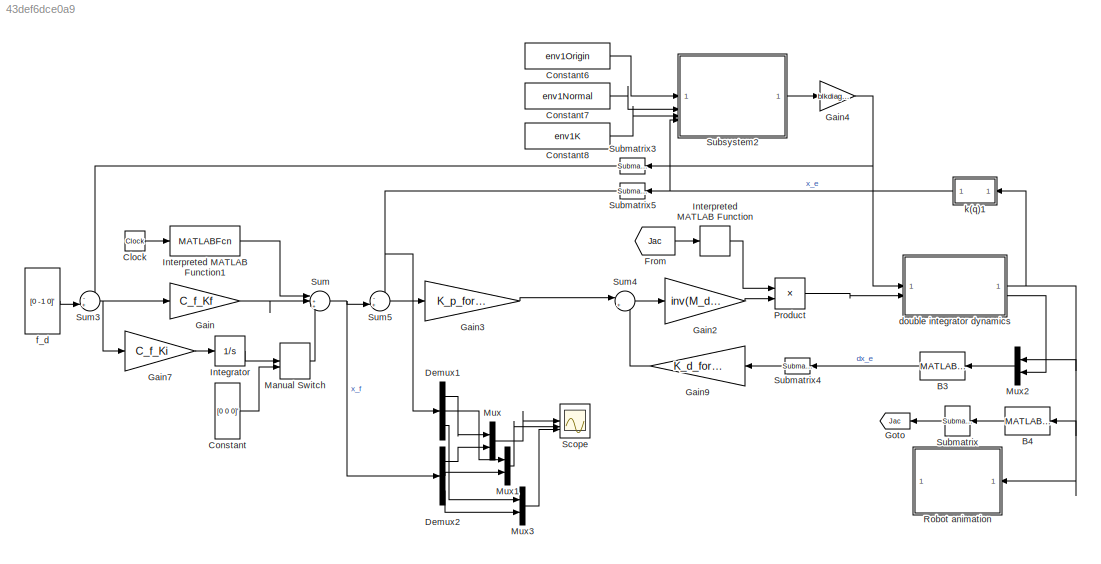
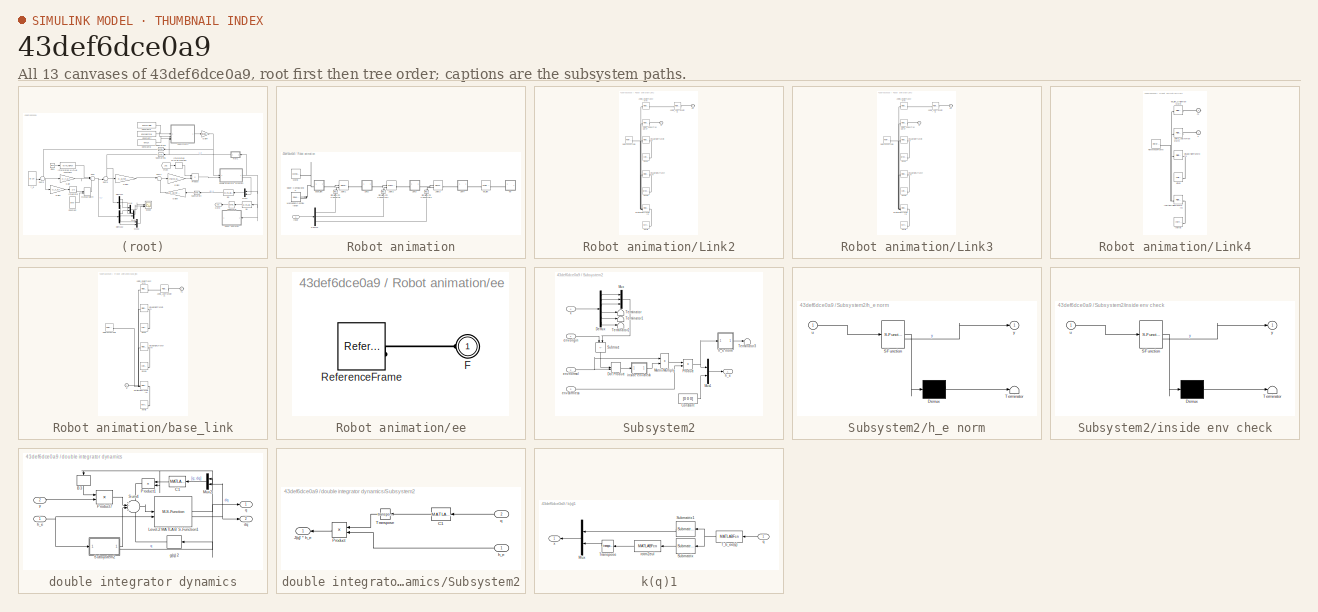
[diagram: thumbnail index - all 13 canvases of the model, root first then tree order]
MODEL slx_43def6dce0a9
KIND model
CONFIG AbsTol = auto
CONFIG EnableMultiTasking = off
CONFIG FixedStep = 0.01
CONFIG MaxStep = 0.05
CONFIG MinStep = auto
CONFIG RelTol = 1e-3
CONFIG SampleTimeConstraint = Unconstrained
CONFIG SolverName = VariableStepAuto
CONFIG StartTime = 0.0
CONFIG StopTime = 30
BLOCK [MATLABFcn] B3
  MATLABFcn = myRobot.func.J(u(1), u(2), u(3))*u(4:6)
  Output1D = off
  OutputDimensions = [6 1]
  OutputSignalType = real
BLOCK [MATLABFcn] B4
  MATLABFcn = myRobot.func.J(u(1), u(2), u(3))
  Output1D = off
  OutputDimensions = [6 3]
  OutputSignalType = real
BLOCK [Clock] Clock
BLOCK [Constant] Constant
  Value = [0 0 0]'
  VectorParams1D = off
BLOCK [Constant] Constant6
  Value = env1Origin
BLOCK [Constant] Constant7
  Value = env1Normal
BLOCK [Constant] Constant8
  Value = env1K
BLOCK [Demux] Demux1
  Outputs = 3
BLOCK [Demux] Demux2
  Outputs = 3
BLOCK [From] From
  GotoTag = Jac
BLOCK [Gain] Gain
  Gain = C_f_Kf
  Multiplication = Matrix(K*u)
BLOCK [Gain] Gain2
  Gain = inv(M_d_force)
  Multiplication = Matrix(K*u)
BLOCK [Gain] Gain3
  Gain = K_p_force
  Multiplication = Matrix(K*u)
BLOCK [Gain] Gain4
  Gain = blkdiag(eye(3), zeros(3))
  Multiplication = Matrix(K*u)
BLOCK [Gain] Gain7
  Gain = C_f_Ki
  Multiplication = Matrix(K*u)
BLOCK [Gain] Gain9
  Gain = K_d_force
  Multiplication = Matrix(K*u)
  NameLocation = top
BLOCK [Goto] Goto
  GotoTag = Jac
  NameLocation = top
BLOCK [Integrator] Integrator
BLOCK [MATLABFcn] Interpreted MATLAB Function
  MATLABFcn = inv(u)
  Output1D = off
  OutputDimensions = [3 3]
BLOCK [MATLABFcn] Interpreted MATLAB Function1
  MATLABFcn = traj_force_position(u)
  Output1D = off
BLOCK [ManualSwitch] Manual Switch
  CurrentSetting = 0
BLOCK [Mux] Mux
  DisplayOption = bar
  Inputs = 2
BLOCK [Mux] Mux1
  DisplayOption = bar
  Inputs = 2
BLOCK [Mux] Mux2
  DisplayOption = bar
  Inputs = 2
  NameLocation = top
BLOCK [Mux] Mux3
  DisplayOption = bar
  Inputs = 2
BLOCK [Product] Product
  Multiplication = Matrix(*)
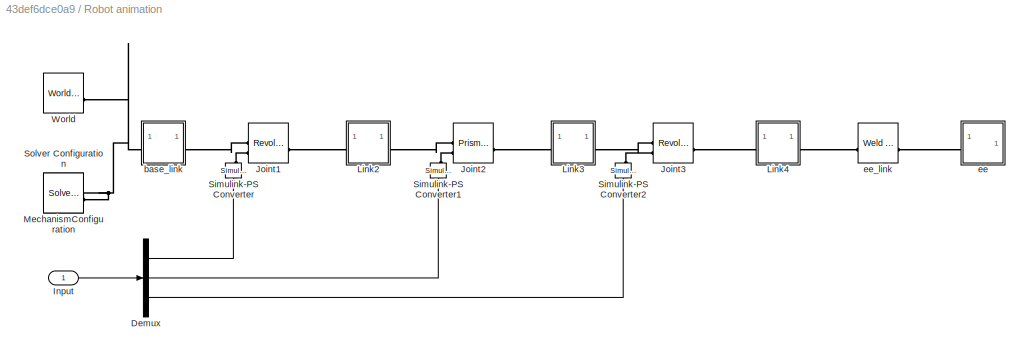
BLOCK [SubSystem] Robot animation
BLOCK [Demux] Robot animation/Demux
  Outputs = 3
BLOCK [Inport] Robot animation/Input
BLOCK [Reference] Robot animation/Joint1  REF=sm_lib/Joints/Revolute Joint
  SourceBlock = sm_lib/Joints/Revolute Joint
  SourceType = Revolute Joint
BLOCK [Reference] Robot animation/Joint2  REF=sm_lib/Joints/Prismatic
Joint
  SourceBlock = sm_lib/Joints/Prismatic\nJoint
  SourceType = Prismatic\nJoint
BLOCK [Reference] Robot animation/Joint3  REF=sm_lib/Joints/Revolute Joint
  SourceBlock = sm_lib/Joints/Revolute Joint
  SourceType = Revolute Joint
BLOCK [SubSystem] Robot animation/Link2
BLOCK [PMIOPort] Robot animation/Link2/F
  Side = Left
BLOCK [PMIOPort] Robot animation/Link2/F1
  Port = 2
  Side = Right
BLOCK [Reference] Robot animation/Link2/Inertia  REF=sm_lib/Body Elements/Inertia
  SourceBlock = sm_lib/Body Elements/Inertia
  SourceType = Inertia
BLOCK [Reference] Robot animation/Link2/InertiaOriginTransform  REF=sm_lib/Frames and
Transforms/Rigid
Transform
  SourceBlock = sm_lib/Frames and\nTransforms/Rigid\nTransform
  SourceType = Rigid\nTransform
BLOCK [Reference] Robot animation/Link2/Joint1_AxisInvTransform  REF=sm_lib/Frames and
Transforms/Rigid
Transform
  SourceBlock = sm_lib/Frames and\nTransforms/Rigid\nTransform
  SourceType = Rigid\nTransform
BLOCK [Reference] Robot animation/Link2/Joint2_AxisTransform  REF=sm_lib/Frames and
Transforms/Rigid
Transform
  SourceBlock = sm_lib/Frames and\nTransforms/Rigid\nTransform
  SourceType = Rigid\nTransform
BLOCK [Reference] Robot animation/Link2/Joint2_OriginTransform  REF=sm_lib/Frames and
Transforms/Rigid
Transform
  SourceBlock = sm_lib/Frames and\nTransforms/Rigid\nTransform
  SourceType = Rigid\nTransform
BLOCK [Reference] Robot animation/Link2/ReferenceFrame  REF=sm_lib/Frames and
Transforms/Reference
Frame
  SourceBlock = sm_lib/Frames and\nTransforms/Reference\nFrame
  SourceType = Reference\nFrame
BLOCK [Reference] Robot animation/Link2/Visual  REF=sm_lib/Body Elements/Cylindrical Solid
  SourceBlock = sm_lib/Body Elements/Cylindrical Solid
  SourceType = Cylindrical Solid
BLOCK [Reference] Robot animation/Link2/Visual1  REF=sm_lib/Body Elements/Brick Solid
  SourceBlock = sm_lib/Body Elements/Brick Solid
  SourceType = Brick Solid
BLOCK [Reference] Robot animation/Link2/VisualOrigin1Transform  REF=sm_lib/Frames and
Transforms/Rigid
Transform
  SourceBlock = sm_lib/Frames and\nTransforms/Rigid\nTransform
  SourceType = Rigid\nTransform
BLOCK [Reference] Robot animation/Link2/VisualOriginTransform  REF=sm_lib/Frames and
Transforms/Rigid
Transform
  SourceBlock = sm_lib/Frames and\nTransforms/Rigid\nTransform
  SourceType = Rigid\nTransform
BLOCK [SubSystem] Robot animation/Link3
BLOCK [PMIOPort] Robot animation/Link3/F
  Side = Left
BLOCK [PMIOPort] Robot animation/Link3/F1
  Port = 2
  Side = Right
BLOCK [Reference] Robot animation/Link3/Inertia  REF=sm_lib/Body Elements/Inertia
  SourceBlock = sm_lib/Body Elements/Inertia
  SourceType = Inertia
BLOCK [Reference] Robot animation/Link3/InertiaOriginTransform  REF=sm_lib/Frames and
Transforms/Rigid
Transform
  SourceBlock = sm_lib/Frames and\nTransforms/Rigid\nTransform
  SourceType = Rigid\nTransform
BLOCK [Reference] Robot animation/Link3/Joint2_AxisInvTransform  REF=sm_lib/Frames and
Transforms/Rigid
Transform
  SourceBlock = sm_lib/Frames and\nTransforms/Rigid\nTransform
  SourceType = Rigid\nTransform
BLOCK [Reference] Robot animation/Link3/Joint3_AxisTransform  REF=sm_lib/Frames and
Transforms/Rigid
Transform
  SourceBlock = sm_lib/Frames and\nTransforms/Rigid\nTransform
  SourceType = Rigid\nTransform
BLOCK [Reference] Robot animation/Link3/Joint3_OriginTransform  REF=sm_lib/Frames and
Transforms/Rigid
Transform
  SourceBlock = sm_lib/Frames and\nTransforms/Rigid\nTransform
  SourceType = Rigid\nTransform
BLOCK [Reference] Robot animation/Link3/ReferenceFrame  REF=sm_lib/Frames and
Transforms/Reference
Frame
  SourceBlock = sm_lib/Frames and\nTransforms/Reference\nFrame
  SourceType = Reference\nFrame
BLOCK [Reference] Robot animation/Link3/Visual  REF=sm_lib/Body Elements/Brick Solid
  SourceBlock = sm_lib/Body Elements/Brick Solid
  SourceType = Brick Solid
BLOCK [Reference] Robot animation/Link3/Visual1  REF=sm_lib/Body Elements/Cylindrical Solid
  SourceBlock = sm_lib/Body Elements/Cylindrical Solid
  SourceType = Cylindrical Solid
BLOCK [Reference] Robot animation/Link3/VisualOrigin1Transform  REF=sm_lib/Frames and
Transforms/Rigid
Transform
  SourceBlock = sm_lib/Frames and\nTransforms/Rigid\nTransform
  SourceType = Rigid\nTransform
BLOCK [Reference] Robot animation/Link3/VisualOriginTransform  REF=sm_lib/Frames and
Transforms/Rigid
Transform
  SourceBlock = sm_lib/Frames and\nTransforms/Rigid\nTransform
  SourceType = Rigid\nTransform
BLOCK [SubSystem] Robot animation/Link4
BLOCK [PMIOPort] Robot animation/Link4/F
  Side = Left
BLOCK [PMIOPort] Robot animation/Link4/F1
  Port = 2
  Side = Right
BLOCK [Reference] Robot animation/Link4/Inertia  REF=sm_lib/Body Elements/Inertia
  SourceBlock = sm_lib/Body Elements/Inertia
  SourceType = Inertia
BLOCK [Reference] Robot animation/Link4/InertiaOriginTransform  REF=sm_lib/Frames and
Transforms/Rigid
Transform
  SourceBlock = sm_lib/Frames and\nTransforms/Rigid\nTransform
  SourceType = Rigid\nTransform
BLOCK [Reference] Robot animation/Link4/Joint3_AxisInvTransform  REF=sm_lib/Frames and
Transforms/Rigid
Transform
  SourceBlock = sm_lib/Frames and\nTransforms/Rigid\nTransform
  SourceType = Rigid\nTransform
BLOCK [Reference] Robot animation/Link4/ReferenceFrame  REF=sm_lib/Frames and
Transforms/Reference
Frame
  SourceBlock = sm_lib/Frames and\nTransforms/Reference\nFrame
  SourceType = Reference\nFrame
BLOCK [Reference] Robot animation/Link4/Visual  REF=sm_lib/Body Elements/Cylindrical Solid
  SourceBlock = sm_lib/Body Elements/Cylindrical Solid
  SourceType = Cylindrical Solid
BLOCK [Reference] Robot animation/Link4/VisualOriginTransform  REF=sm_lib/Frames and
Transforms/Rigid
Transform
  SourceBlock = sm_lib/Frames and\nTransforms/Rigid\nTransform
  SourceType = Rigid\nTransform
BLOCK [Reference] Robot animation/Link4/ee_link_OriginTransform  REF=sm_lib/Frames and
Transforms/Rigid
Transform
  SourceBlock = sm_lib/Frames and\nTransforms/Rigid\nTransform
  SourceType = Rigid\nTransform
BLOCK [Reference] Robot animation/MechanismConfiguration  REF=sm_lib/Utilities/Mechanism
Configuration
  SourceBlock = sm_lib/Utilities/Mechanism\nConfiguration
  SourceType = Mechanism\nConfiguration
BLOCK [Reference] Robot animation/Simulink-PS Converter  REF=nesl_utility/Simulink-PS
Converter
  NameLocation = right
  SourceBlock = nesl_utility/Simulink-PS\nConverter
  SourceType = Simulink-PS\nConverter
BLOCK [Reference] Robot animation/Simulink-PS Converter1  REF=nesl_utility/Simulink-PS
Converter
  NameLocation = right
  SourceBlock = nesl_utility/Simulink-PS\nConverter
  SourceType = Simulink-PS\nConverter
BLOCK [Reference] Robot animation/Simulink-PS Converter2  REF=nesl_utility/Simulink-PS
Converter
  NameLocation = right
  SourceBlock = nesl_utility/Simulink-PS\nConverter
  SourceType = Simulink-PS\nConverter
BLOCK [Reference] Robot animation/Solver Configuration  REF=nesl_utility/Solver
Configuration
  SourceBlock = nesl_utility/Solver\nConfiguration
  SourceType = Solver\nConfiguration
BLOCK [Reference] Robot animation/World  REF=sm_lib/Frames and
Transforms/World Frame
  SourceBlock = sm_lib/Frames and\nTransforms/World Frame
  SourceType = World Frame
BLOCK [SubSystem] Robot animation/base_link
BLOCK [PMIOPort] Robot animation/base_link/F
  Side = Left
BLOCK [PMIOPort] Robot animation/base_link/F1
  Port = 2
  Side = Right
BLOCK [Reference] Robot animation/base_link/Inertia  REF=sm_lib/Body Elements/Inertia
  SourceBlock = sm_lib/Body Elements/Inertia
  SourceType = Inertia
BLOCK [Reference] Robot animation/base_link/InertiaOriginTransform  REF=sm_lib/Frames and
Transforms/Rigid
Transform
  SourceBlock = sm_lib/Frames and\nTransforms/Rigid\nTransform
  SourceType = Rigid\nTransform
BLOCK [Reference] Robot animation/base_link/Joint1_AxisTransform  REF=sm_lib/Frames and
Transforms/Rigid
Transform
  SourceBlock = sm_lib/Frames and\nTransforms/Rigid\nTransform
  SourceType = Rigid\nTransform
BLOCK [Reference] Robot animation/base_link/Joint1_OriginTransform  REF=sm_lib/Frames and
Transforms/Rigid
Transform
  SourceBlock = sm_lib/Frames and\nTransforms/Rigid\nTransform
  SourceType = Rigid\nTransform
BLOCK [Reference] Robot animation/base_link/ReferenceFrame  REF=sm_lib/Frames and
Transforms/Reference
Frame
  SourceBlock = sm_lib/Frames and\nTransforms/Reference\nFrame
  SourceType = Reference\nFrame
BLOCK [Reference] Robot animation/base_link/Visual  REF=sm_lib/Body Elements/Cylindrical Solid
  SourceBlock = sm_lib/Body Elements/Cylindrical Solid
  SourceType = Cylindrical Solid
BLOCK [Reference] Robot animation/base_link/Visual1  REF=sm_lib/Body Elements/Cylindrical Solid
  SourceBlock = sm_lib/Body Elements/Cylindrical Solid
  SourceType = Cylindrical Solid
BLOCK [Reference] Robot animation/base_link/VisualOrigin1Transform  REF=sm_lib/Frames and
Transforms/Rigid
Transform
  SourceBlock = sm_lib/Frames and\nTransforms/Rigid\nTransform
  SourceType = Rigid\nTransform
BLOCK [Reference] Robot animation/base_link/VisualOriginTransform  REF=sm_lib/Frames and
Transforms/Rigid
Transform
  SourceBlock = sm_lib/Frames and\nTransforms/Rigid\nTransform
  SourceType = Rigid\nTransform
BLOCK [SubSystem] Robot animation/ee
BLOCK [PMIOPort] Robot animation/ee/F
  Side = Left
BLOCK [Reference] Robot animation/ee/ReferenceFrame  REF=sm_lib/Frames and
Transforms/Reference
Frame
  SourceBlock = sm_lib/Frames and\nTransforms/Reference\nFrame
  SourceType = Reference\nFrame
BLOCK [Reference] Robot animation/ee_link  REF=sm_lib/Joints/Weld Joint
  SourceBlock = sm_lib/Joints/Weld Joint
  SourceType = Weld Joint
BLOCK [Scope] Scope
  Floating = off
  NumInputPorts = 3
  ScopeSpecificationString = Simulink.scopes.TimeScopeBlockCfg('CurrentConfiguration', extmgr.ConfigurationSet(extmgr.Configuration('Core','General UI',true),extmgr.Configuration('Core','Source UI',true),extmgr.Configuration('Sources','WiredSimulink',true),extmgr.Configuration('Visuals','Time Domain',true,'SerializedDisplays',{struct('MinYLimReal','-0.24604','MaxYLimReal','0.87415','YLabelReal','','MinYLimMag','0.00000','MaxY...<+2943ch>
BLOCK [Reference] Submatrix  REF=matrix_library/Submatrix
  LibrarySourceBlock = simulink/Matrix\nOperations/Submatrix
  NameLocation = top
  SourceBlock = matrix_library/Submatrix
  SourceType = Submatrix
BLOCK [Reference] Submatrix3  REF=matrix_library/Submatrix
  LibrarySourceBlock = simulink/Matrix\nOperations/Submatrix
  NameLocation = top
  SourceBlock = matrix_library/Submatrix
  SourceType = Submatrix
BLOCK [Reference] Submatrix4  REF=matrix_library/Submatrix
  LibrarySourceBlock = simulink/Matrix\nOperations/Submatrix
  NameLocation = top
  SourceBlock = matrix_library/Submatrix
  SourceType = Submatrix
BLOCK [Reference] Submatrix5  REF=matrix_library/Submatrix
  LibrarySourceBlock = simulink/Matrix\nOperations/Submatrix
  NameLocation = top
  SourceBlock = matrix_library/Submatrix
  SourceType = Submatrix
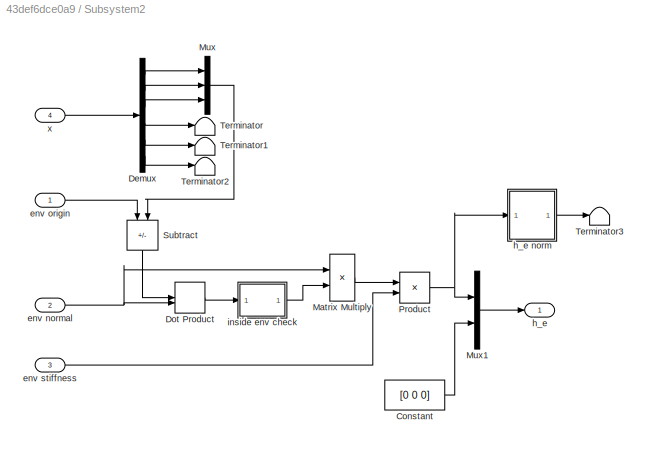
BLOCK [SubSystem] Subsystem2
BLOCK [Constant] Subsystem2/Constant
  Value = [0 0 0]
BLOCK [Demux] Subsystem2/Demux
  Outputs = 6
BLOCK [DotProduct] Subsystem2/Dot Product
  OutDataTypeStr = Inherit: Inherit via internal rule
BLOCK [Product] Subsystem2/Matrix Multiply
BLOCK [Mux] Subsystem2/Mux
  DisplayOption = bar
  Inputs = 3
BLOCK [Mux] Subsystem2/Mux1
  DisplayOption = bar
  Inputs = 2
BLOCK [Product] Subsystem2/Product
BLOCK [Sum] Subsystem2/Subtract
  IconShape = rectangular
  Inputs = -+
  NameLocation = left
BLOCK [Terminator] Subsystem2/Terminator
BLOCK [Terminator] Subsystem2/Terminator1
BLOCK [Terminator] Subsystem2/Terminator2
BLOCK [Terminator] Subsystem2/Terminator3
BLOCK [Inport] Subsystem2/env normal
  Port = 2
BLOCK [Inport] Subsystem2/env origin
BLOCK [Inport] Subsystem2/env stiffness
  Port = 3
BLOCK [Outport] Subsystem2/h_e
BLOCK [SubSystem] Subsystem2/h_e norm
  ErrorFcn = Stateflow.Translate.translate
  PermitHierarchicalResolution = ExplicitOnly
  SFBlockType = MATLAB Function
  TreatAsAtomicUnit = on
BLOCK [Demux] Subsystem2/h_e norm/ Demux 
  Outputs = 1
BLOCK [S-Function] Subsystem2/h_e norm/ SFunction 
  EnableBusSupport = on
  FunctionName = sf_sfun
  PortCounts = [1 2]
  SFcnIsStateOwnerBlock = off
  SFunctionDeploymentMode = off
  Tag = Stateflow S-Function 3
BLOCK [Terminator] Subsystem2/h_e norm/ Terminator 
BLOCK [Inport] Subsystem2/h_e norm/u
BLOCK [Outport] Subsystem2/h_e norm/y
BLOCK [SubSystem] Subsystem2/inside env check
  ErrorFcn = Stateflow.Translate.translate
  PermitHierarchicalResolution = ExplicitOnly
  SFBlockType = MATLAB Function
  TreatAsAtomicUnit = on
BLOCK [Demux] Subsystem2/inside env check/ Demux 
  Outputs = 1
BLOCK [S-Function] Subsystem2/inside env check/ SFunction 
  EnableBusSupport = on
  FunctionName = sf_sfun
  PortCounts = [1 2]
  SFcnIsStateOwnerBlock = off
  SFunctionDeploymentMode = off
  Tag = Stateflow S-Function 4
BLOCK [Terminator] Subsystem2/inside env check/ Terminator 
BLOCK [Inport] Subsystem2/inside env check/u
BLOCK [Outport] Subsystem2/inside env check/y
BLOCK [Inport] Subsystem2/x
  NameLocation = top
  Port = 4
BLOCK [Sum] Sum
  Inputs = |+++
BLOCK [Sum] Sum3
  Inputs = -+|
BLOCK [Sum] Sum4
  Inputs = |+-
BLOCK [Sum] Sum5
  Inputs = -+|
BLOCK [SubSystem] double integrator dynamics
BLOCK [MATLABFcn] double integrator dynamics/B3
  MATLABFcn = myRobot.func.B(u(1), u(2), u(3))
  NameLocation = right
  Output1D = off
  OutputDimensions = [3 3]
  OutputSignalType = real
BLOCK [MATLABFcn] double integrator dynamics/C1
  MATLABFcn = myRobot.func.C(u(1), u(2), u(3), u(4), u(5), u(6))
  Output1D = off
  OutputDimensions = [3 3]
BLOCK [M-S-Function] double integrator dynamics/Level-2 MATLAB S-Function1
  FunctionName = robot_s_function
  Parameters = myRobot,q_i_force,dq_i
BLOCK [Mux] double integrator dynamics/Mux2
  DisplayOption = bar
  Inputs = 2
  NameLocation = top
BLOCK [Product] double integrator dynamics/Product1
  Multiplication = Matrix(*)
  NameLocation = top
BLOCK [Product] double integrator dynamics/Product7
  Multiplication = Matrix(*)
BLOCK [SubSystem] double integrator dynamics/Subsystem2
  PortSchema = {"entries":[{"content":{"sides":[{"content":{"connectorIds":["In1"]},"type":"ConnectorPlacement.EquallySpacedRectSide","uuid":"1f93c160-f5f4-4629-bb0e-75eedc441f9b"},{"content":{"connectorIds":["Out1","In2"],"side":"RIGHT"},"type":"ConnectorPlacement.EquallySpacedRectSide","uuid":"248bd9fc-4abb-4238-8c5d-1f1fbe7c5b01"},{"content":{"side":"TOP"},"type":"ConnectorPlacement.EquallySpacedRectSide","uu...<+228ch>
BLOCK [MATLABFcn] double integrator dynamics/Subsystem2/C1
  MATLABFcn = myRobot.func.J(u(1), u(2), u(3))
  Output1D = off
  OutputDimensions = [6 3]
BLOCK [Outport] double integrator dynamics/Subsystem2/J(q)' * h_e
BLOCK [Product] double integrator dynamics/Subsystem2/Product
  Multiplication = Matrix(*)
  NameLocation = top
BLOCK [Math] double integrator dynamics/Subsystem2/Transpose
  NameLocation = top
  Operator = transpose
BLOCK [Inport] double integrator dynamics/Subsystem2/h_e
BLOCK [Inport] double integrator dynamics/Subsystem2/q
  Port = 2
BLOCK [Sum] double integrator dynamics/Sum4
  Inputs = ++|++
BLOCK [Outport] double integrator dynamics/dq
  Port = 2
BLOCK [MATLABFcn] double integrator dynamics/g(q) 2
  MATLABFcn = myRobot.func.G(u(1), u(2), u(3))
  OutputDimensions = 3
BLOCK [Inport] double integrator dynamics/h_e
BLOCK [Outport] double integrator dynamics/q
BLOCK [Inport] double integrator dynamics/y
  Port = 2
BLOCK [Constant] f_d
  Value = [0 -1 0]'
  VectorParams1D = off
BLOCK [SubSystem] k(q)1
  NameLocation = top
BLOCK [Mux] k(q)1/Mux
  DisplayOption = bar
  Inputs = 2
  NameLocation = top
BLOCK [Reference] k(q)1/Submatrix  REF=matrix_library/Submatrix
  NameLocation = top
  SourceBlock = matrix_library/Submatrix
  SourceType = Submatrix
BLOCK [Reference] k(q)1/Submatrix1  REF=matrix_library/Submatrix
  NameLocation = top
  SourceBlock = matrix_library/Submatrix
  SourceType = Submatrix
BLOCK [MATLABFcn] k(q)1/T_b_ee(q)
  MATLABFcn = myRobot.func.T_b_ee(u(1), u(2), u(3))
  NameLocation = top
  Output1D = off
BLOCK [Math] k(q)1/Transpose
  NameLocation = top
  Operator = transpose
BLOCK [Inport] k(q)1/q
  NameLocation = top
BLOCK [MATLABFcn] k(q)1/rotm2eul
  MATLABFcn = rotm2eul(u, "ZYZ")
  NameLocation = top
  Output1D = off
BLOCK [Outport] k(q)1/x
  NameLocation = top
LINE B3:1 -> Submatrix4:1
LINE B4:1 -> Submatrix:1
LINE Clock:1 -> Interpreted MATLAB Function1:1
LINE Constant6:1 -> Subsystem2:1
LINE Constant7:1 -> Subsystem2:2
LINE Constant8:1 -> Subsystem2:3
LINE Constant:1 -> Manual Switch:2
LINE Demux1:1 -> Mux:1
LINE Demux1:2 -> Mux1:1
LINE Demux1:3 -> Mux3:1
LINE Demux2:1 -> Mux:2
LINE Demux2:2 -> Mux1:2
LINE Demux2:3 -> Mux3:2
LINE From:1 -> Interpreted MATLAB Function:1
LINE Gain2:1 -> Product:2
LINE Gain3:1 -> Sum4:1
NET Gain4:1 -> Submatrix3:1, double integrator dynamics:1
LINE Gain7:1 -> Integrator:1
LINE Gain9:1 -> Sum4:2
LINE Gain:1 -> Sum:2
LINE Integrator:1 -> Manual Switch:1
LINE Interpreted MATLAB Function1:1 -> Sum:1
LINE Interpreted MATLAB Function:1 -> Product:1
LINE Manual Switch:1 -> Sum:3
LINE Mux1:1 -> Scope:2
LINE Mux2:1 -> B3:1
LINE Mux3:1 -> Scope:3
LINE Mux:1 -> Scope:1
LINE Product:1 -> double integrator dynamics:2
LINE Robot animation/Demux:1 -> Robot animation/Simulink-PS Converter:1
LINE Robot animation/Demux:2 -> Robot animation/Simulink-PS Converter1:1
LINE Robot animation/Demux:3 -> Robot animation/Simulink-PS Converter2:1
LINE Robot animation/Input:1 -> Robot animation/Demux:1
LINE Submatrix3:1 -> Sum3:1
LINE Submatrix4:1 -> Gain9:1
NET Submatrix5:1 -> Demux1:1, Sum5:1
LINE Submatrix:1 -> Goto:1
LINE Subsystem2/Constant:1 -> Subsystem2/Mux1:2
LINE Subsystem2/Demux:1 -> Subsystem2/Mux:1
LINE Subsystem2/Demux:2 -> Subsystem2/Mux:2
LINE Subsystem2/Demux:3 -> Subsystem2/Mux:3
LINE Subsystem2/Demux:4 -> Subsystem2/Terminator:1
LINE Subsystem2/Demux:5 -> Subsystem2/Terminator1:1
LINE Subsystem2/Demux:6 -> Subsystem2/Terminator2:1
LINE Subsystem2/Dot Product:1 -> Subsystem2/inside env check:1
LINE Subsystem2/Matrix Multiply:1 -> Subsystem2/Product:1
LINE Subsystem2/Mux1:1 -> Subsystem2/h_e:1
LINE Subsystem2/Mux:1 -> Subsystem2/Subtract:2
NET Subsystem2/Product:1 -> Subsystem2/Mux1:1, Subsystem2/h_e norm:1
LINE Subsystem2/Subtract:1 -> Subsystem2/Dot Product:1
NET Subsystem2/env normal:1 -> Subsystem2/Dot Product:2, Subsystem2/Matrix Multiply:1
LINE Subsystem2/env origin:1 -> Subsystem2/Subtract:1
LINE Subsystem2/env stiffness:1 -> Subsystem2/Product:2
LINE Subsystem2/h_e norm:1 -> Subsystem2/Terminator3:1
LINE Subsystem2/inside env check:1 -> Subsystem2/Matrix Multiply:2
LINE Subsystem2/x:1 -> Subsystem2/Demux:1
LINE Subsystem2:1 -> Gain4:1
NET Sum3:1 -> Gain7:1, Gain:1
LINE Sum4:1 -> Gain2:1
LINE Sum5:1 -> Gain3:1
NET Sum:1 -> Demux2:1, Sum5:2
LINE double integrator dynamics/B3:1 -> double integrator dynamics/Product7:1
LINE double integrator dynamics/C1:1 -> double integrator dynamics/Product1:1
NET double integrator dynamics/Level-2 MATLAB S-Function1:1 -> double integrator dynamics/B3:1, double integrator dynamics/Mux2:1, double integrator dynamics/Product1:2, double integrator dynamics/Subsystem2:2, double integrator dynamics/g(q) 2:1, double integrator dynamics/q:1
NET double integrator dynamics/Level-2 MATLAB S-Function1:2 -> double integrator dynamics/Mux2:2, double integrator dynamics/dq:1
LINE double integrator dynamics/Mux2:1 -> double integrator dynamics/C1:1
LINE double integrator dynamics/Product1:1 -> double integrator dynamics/Sum4:1
LINE double integrator dynamics/Product7:1 -> double integrator dynamics/Sum4:2
LINE double integrator dynamics/Subsystem2/C1:1 -> double integrator dynamics/Subsystem2/Transpose:1
LINE double integrator dynamics/Subsystem2/Product:1 -> double integrator dynamics/Subsystem2/J(q)' * h_e:1
LINE double integrator dynamics/Subsystem2/Transpose:1 -> double integrator dynamics/Subsystem2/Product:1
LINE double integrator dynamics/Subsystem2/h_e:1 -> double integrator dynamics/Subsystem2/Product:2
LINE double integrator dynamics/Subsystem2/q:1 -> double integrator dynamics/Subsystem2/C1:1
LINE double integrator dynamics/Subsystem2:1 -> double integrator dynamics/Sum4:3
LINE double integrator dynamics/Sum4:1 -> double integrator dynamics/Level-2 MATLAB S-Function1:1
LINE double integrator dynamics/g(q) 2:1 -> double integrator dynamics/Sum4:4
NET double integrator dynamics/h_e:1 -> double integrator dynamics/Level-2 MATLAB S-Function1:2, double integrator dynamics/Subsystem2:1
LINE double integrator dynamics/y:1 -> double integrator dynamics/Product7:2
NET double integrator dynamics:1 -> B4:1, Mux2:1, Robot animation:1, k(q)1:1
LINE double integrator dynamics:2 -> Mux2:2
LINE f_d:1 -> Sum3:2
LINE k(q)1/Mux:1 -> k(q)1/x:1
LINE k(q)1/Submatrix1:1 -> k(q)1/Mux:1
LINE k(q)1/Submatrix:1 -> k(q)1/rotm2eul:1
NET k(q)1/T_b_ee(q):1 -> k(q)1/Submatrix1:1, k(q)1/Submatrix:1
LINE k(q)1/Transpose:1 -> k(q)1/Mux:2
LINE k(q)1/q:1 -> k(q)1/T_b_ee(q):1
LINE k(q)1/rotm2eul:1 -> k(q)1/Transpose:1
NET k(q)1:1 -> Submatrix5:1, Subsystem2:4
PLINE Robot animation/Joint1:LConn1 -- Robot animation/base_link:RConn1
PLINE Robot animation/Joint1:LConn2 -- Robot animation/Simulink-PS Converter:RConn1
PLINE Robot animation/Joint1:RConn1 -- Robot animation/Link2:LConn1
PLINE Robot animation/Joint2:LConn1 -- Robot animation/Link2:RConn1
PLINE Robot animation/Joint2:LConn2 -- Robot animation/Simulink-PS Converter1:RConn1
PLINE Robot animation/Joint2:RConn1 -- Robot animation/Link3:LConn1
PLINE Robot animation/Joint3:LConn1 -- Robot animation/Link3:RConn1
PLINE Robot animation/Joint3:LConn2 -- Robot animation/Simulink-PS Converter2:RConn1
PLINE Robot animation/Joint3:RConn1 -- Robot animation/Link4:LConn1
PLINE Robot animation/Link2/F1:RConn1 -- Robot animation/Link2/Joint2_AxisTransform:RConn1
PLINE Robot animation/Link2/F:RConn1 -- Robot animation/Link2/Joint1_AxisInvTransform:RConn1
PLINE Robot animation/Link2/Inertia:RConn1 -- Robot animation/Link2/InertiaOriginTransform:RConn1
PNET net1: Robot animation/Link2/InertiaOriginTransform:LConn1 -- Robot animation/Link2/Joint1_AxisInvTransform:LConn1 -- Robot animation/Link2/Joint2_OriginTransform:LConn1 -- Robot animation/Link2/ReferenceFrame:RConn1 -- Robot animation/Link2/VisualOrigin1Transform:LConn1 -- Robot animation/Link2/VisualOriginTransform:LConn1
PLINE Robot animation/Link2/Joint2_AxisTransform:LConn1 -- Robot animation/Link2/Joint2_OriginTransform:RConn1
PLINE Robot animation/Link2/Visual1:RConn1 -- Robot animation/Link2/VisualOrigin1Transform:RConn1
PLINE Robot animation/Link2/Visual:RConn1 -- Robot animation/Link2/VisualOriginTransform:RConn1
PLINE Robot animation/Link3/F1:RConn1 -- Robot animation/Link3/Joint3_AxisTransform:RConn1
PLINE Robot animation/Link3/F:RConn1 -- Robot animation/Link3/Joint2_AxisInvTransform:RConn1
PLINE Robot animation/Link3/Inertia:RConn1 -- Robot animation/Link3/InertiaOriginTransform:RConn1
PNET net2: Robot animation/Link3/InertiaOriginTransform:LConn1 -- Robot animation/Link3/Joint2_AxisInvTransform:LConn1 -- Robot animation/Link3/Joint3_OriginTransform:LConn1 -- Robot animation/Link3/ReferenceFrame:RConn1 -- Robot animation/Link3/VisualOrigin1Transform:LConn1 -- Robot animation/Link3/VisualOriginTransform:LConn1
PLINE Robot animation/Link3/Joint3_AxisTransform:LConn1 -- Robot animation/Link3/Joint3_OriginTransform:RConn1
PLINE Robot animation/Link3/Visual1:RConn1 -- Robot animation/Link3/VisualOrigin1Transform:RConn1
PLINE Robot animation/Link3/Visual:RConn1 -- Robot animation/Link3/VisualOriginTransform:RConn1
PLINE Robot animation/Link4/F1:RConn1 -- Robot animation/Link4/ee_link_OriginTransform:RConn1
PLINE Robot animation/Link4/F:RConn1 -- Robot animation/Link4/Joint3_AxisInvTransform:RConn1
PLINE Robot animation/Link4/Inertia:RConn1 -- Robot animation/Link4/InertiaOriginTransform:RConn1
PNET net3: Robot animation/Link4/InertiaOriginTransform:LConn1 -- Robot animation/Link4/Joint3_AxisInvTransform:LConn1 -- Robot animation/Link4/ReferenceFrame:RConn1 -- Robot animation/Link4/VisualOriginTransform:LConn1 -- Robot animation/Link4/ee_link_OriginTransform:LConn1
PLINE Robot animation/Link4/Visual:RConn1 -- Robot animation/Link4/VisualOriginTransform:RConn1
PLINE Robot animation/Link4:RConn1 -- Robot animation/ee_link:LConn1
PNET net4: Robot animation/MechanismConfiguration:RConn1 -- Robot animation/Solver Configuration:RConn1 -- Robot animation/World:RConn1 -- Robot animation/base_link:LConn1
PLINE Robot animation/base_link/F1:RConn1 -- Robot animation/base_link/Joint1_AxisTransform:RConn1
PNET net5: Robot animation/base_link/F:RConn1 -- Robot animation/base_link/InertiaOriginTransform:LConn1 -- Robot animation/base_link/Joint1_OriginTransform:LConn1 -- Robot animation/base_link/ReferenceFrame:RConn1 -- Robot animation/base_link/VisualOrigin1Transform:LConn1 -- Robot animation/base_link/VisualOriginTransform:LConn1
PLINE Robot animation/base_link/Inertia:RConn1 -- Robot animation/base_link/InertiaOriginTransform:RConn1
PLINE Robot animation/base_link/Joint1_AxisTransform:LConn1 -- Robot animation/base_link/Joint1_OriginTransform:RConn1
PLINE Robot animation/base_link/Visual1:RConn1 -- Robot animation/base_link/VisualOrigin1Transform:RConn1
PLINE Robot animation/base_link/Visual:RConn1 -- Robot animation/base_link/VisualOriginTransform:RConn1
PLINE Robot animation/ee/F:RConn1 -- Robot animation/ee/ReferenceFrame:RConn1
PLINE Robot animation/ee:LConn1 -- Robot animation/ee_link:RConn1
note: NET lines group one-source signal fan-out (src -> all destinations, sorted); 1:1 wires keep LINE; PNET lines group multi-terminal physical nets as a canonical sorted terminal list (undirected conserving connections); 2-terminal nets keep the pairwise PLINE form
CHART Subsystem2/inside env check states=1 transitions=1
  STATE_LABEL 'eML_blk_kernel()'
  STATE_LABEL 'SCRIPT:\nfunction y = fcn(u)\n    if u >= 0\n        y = 0;\n    else \n        y = u;\n    end\nend\n'
CHART Subsystem2/h_e norm states=1 transitions=1
  STATE_LABEL 'eML_blk_kernel()'
  STATE_LABEL 'SCRIPT:\nfunction y = fcn(u)\n    y = norm(u);\nend\n'
CHART  states=0 transitions=0
CHART  states=0 transitions=0
